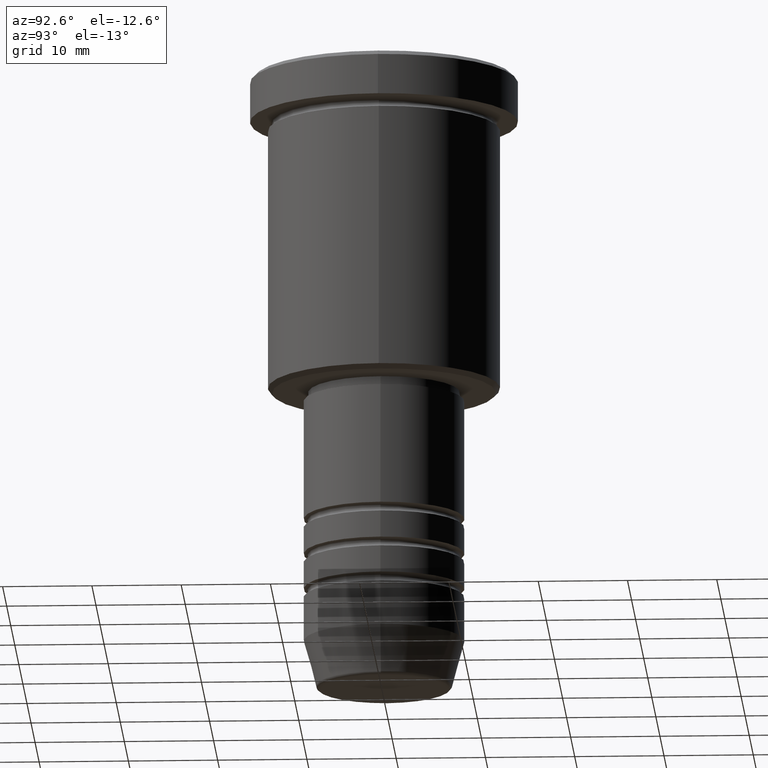
[diagram: clean part render]
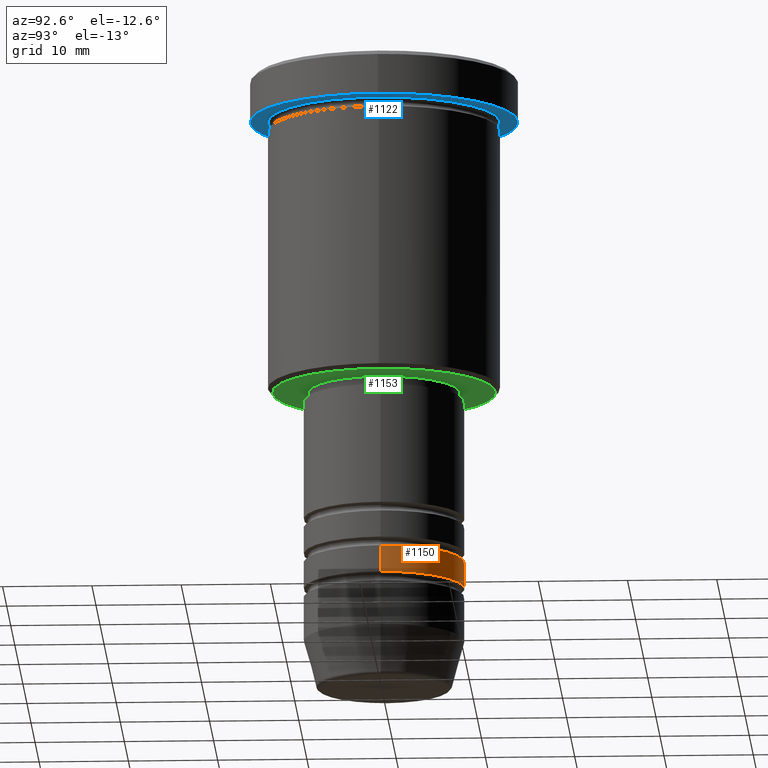
[diagram: same view with three faces highlighted in distinct colors, each labeled with its STEP entity id]
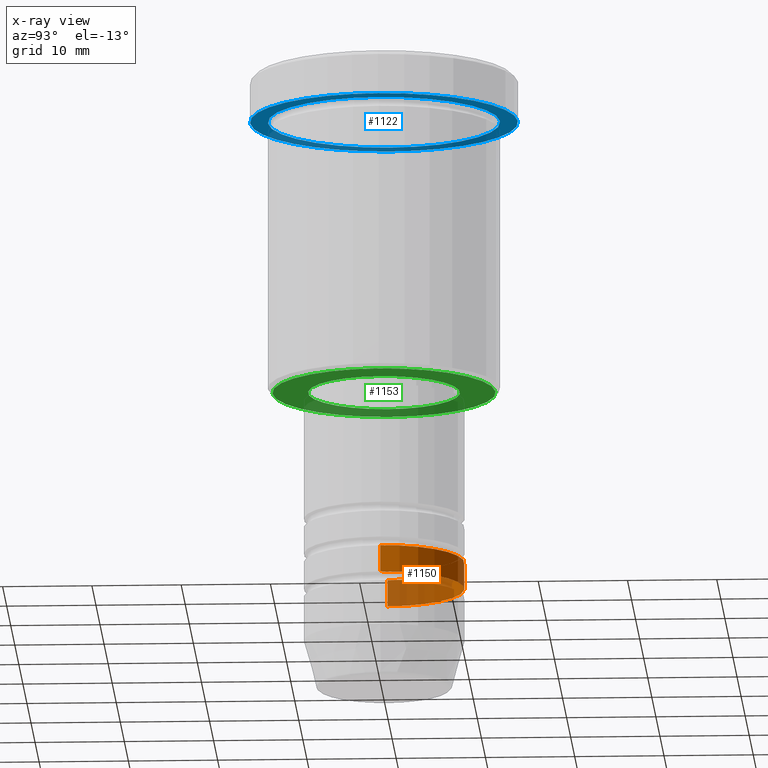
[diagram: x-ray of the same camera — body ghosted, the three highlighted faces saturated]
A machine part, auxiliary view with three faces highlighted in distinct colors.
The next image is the same camera in x-ray (body ghosted, the three faces saturated) — at least one of them is partly hidden behind the body in this view.
Their STEP definitions:

[orange] entity #1150 — the highlighted cylindrical surface (partial cylindrical patch) has radius 9 mm, axis along (-0, -0, 1).
#18 = AXIS2_PLACEMENT_3D ( 'NONE', #612, #74, #70 ) ;
#70 = DIRECTION ( 'NONE',  ( 1.000000000000000000, 0.000000000000000000, 0.000000000000000000 ) ) ;
#72 = VERTEX_POINT ( 'NONE', #1081 ) ;
#74 = DIRECTION ( 'NONE',  ( -0.000000000000000000, -0.000000000000000000, 1.000000000000000000 ) ) ;
#86 = CARTESIAN_POINT ( 'NONE',  ( 9.000000000000000000, 0.000000000000000000, -55.49999999999999289 ) ) ;
#96 = ORIENTED_EDGE ( 'NONE', *, *, #166, .F. ) ;
#134 = LINE ( 'NONE', #488, #179 ) ;
#166 = EDGE_CURVE ( 'NONE', #221, #946, #544, .T. ) ;
#179 = VECTOR ( 'NONE', #502, 1000.000000000000000 ) ;
#221 = VERTEX_POINT ( 'NONE', #86 ) ;
#227 = EDGE_LOOP ( 'NONE', ( #982, #447, #96, #778 ) ) ;
#255 = AXIS2_PLACEMENT_3D ( 'NONE', #835, #685, #315 ) ;
#259 = DIRECTION ( 'NONE',  ( -0.000000000000000000, -0.000000000000000000, 1.000000000000000000 ) ) ;
#262 = CYLINDRICAL_SURFACE ( 'NONE', #772, 9.000000000000001776 ) ;
#315 = DIRECTION ( 'NONE',  ( 1.000000000000000000, 0.000000000000000000, 0.000000000000000000 ) ) ;
#361 = DIRECTION ( 'NONE',  ( -0.000000000000000000, -0.000000000000000000, 1.000000000000000000 ) ) ;
#365 = CARTESIAN_POINT ( 'NONE',  ( 0.000000000000000000, 0.000000000000000000, 0.000000000000000000 ) ) ;
#447 = ORIENTED_EDGE ( 'NONE', *, *, #829, .T. ) ;
#462 = DIRECTION ( 'NONE',  ( 1.000000000000000000, 0.000000000000000000, 0.000000000000000000 ) ) ;
#488 = CARTESIAN_POINT ( 'NONE',  ( -9.000000000000001776, 1.102182119232617911E-15, 0.000000000000000000 ) ) ;
#502 = DIRECTION ( 'NONE',  ( -0.000000000000000000, -0.000000000000000000, 1.000000000000000000 ) ) ;
#544 = CIRCLE ( 'NONE', #18, 9.000000000000000000 ) ;
#568 = VERTEX_POINT ( 'NONE', #689 ) ;
#578 = EDGE_CURVE ( 'NONE', #568, #221, #1047, .T. ) ;
#612 = CARTESIAN_POINT ( 'NONE',  ( 0.000000000000000000, 0.000000000000000000, -55.49999999999999289 ) ) ;
#641 = FACE_OUTER_BOUND ( 'NONE', #227, .T. ) ;
#685 = DIRECTION ( 'NONE',  ( -0.000000000000000000, -0.000000000000000000, 1.000000000000000000 ) ) ;
#689 = CARTESIAN_POINT ( 'NONE',  ( 9.000000000000001776, 0.000000000000000000, -58.49999999999999289 ) ) ;
#772 = AXIS2_PLACEMENT_3D ( 'NONE', #365, #361, #462 ) ;
#778 = ORIENTED_EDGE ( 'NONE', *, *, #578, .F. ) ;
#795 = CARTESIAN_POINT ( 'NONE',  ( -9.000000000000000000, 1.102182119232617714E-15, -55.49999999999999289 ) ) ;
#829 = EDGE_CURVE ( 'NONE', #72, #946, #134, .T. ) ;
#835 = CARTESIAN_POINT ( 'NONE',  ( 0.000000000000000000, 0.000000000000000000, -58.49999999999999289 ) ) ;
#887 = EDGE_CURVE ( 'NONE', #568, #72, #1035, .T. ) ;
#946 = VERTEX_POINT ( 'NONE', #795 ) ;
#982 = ORIENTED_EDGE ( 'NONE', *, *, #887, .T. ) ;
#994 = VECTOR ( 'NONE', #259, 1000.000000000000000 ) ;
#1035 = CIRCLE ( 'NONE', #255, 9.000000000000001776 ) ;
#1047 = LINE ( 'NONE', #1078, #994 ) ;
#1078 = CARTESIAN_POINT ( 'NONE',  ( 9.000000000000001776, 0.000000000000000000, 0.000000000000000000 ) ) ;
#1081 = CARTESIAN_POINT ( 'NONE',  ( -9.000000000000001776, 1.102182119232617911E-15, -58.49999999999999289 ) ) ;
#1150 = ADVANCED_FACE ( 'NONE', ( #641 ), #262, .T. ) ;

[blue] entity #1122 — the highlighted planar face has unit normal (0, 0, -1).
#58 = CARTESIAN_POINT ( 'NONE',  ( -15.00000000000000000, 1.836970198721029589E-15, -4.999999999999999112 ) ) ;
#65 = CIRCLE ( 'NONE', #713, 15.00000000000000000 ) ;
#93 = DIRECTION ( 'NONE',  ( 0.000000000000000000, 0.000000000000000000, -1.000000000000000000 ) ) ;
#104 = EDGE_LOOP ( 'NONE', ( #867, #690 ) ) ;
#106 = VERTEX_POINT ( 'NONE', #58 ) ;
#187 = VERTEX_POINT ( 'NONE', #1178 ) ;
#210 = CARTESIAN_POINT ( 'NONE',  ( 13.00000000000000000, 1.592040838891559095E-15, -4.999999999999999112 ) ) ;
#245 = DIRECTION ( 'NONE',  ( -0.000000000000000000, -0.000000000000000000, 1.000000000000000000 ) ) ;
#257 = VERTEX_POINT ( 'NONE', #371 ) ;
#295 = CARTESIAN_POINT ( 'NONE',  ( 0.000000000000000000, 0.000000000000000000, -4.999999999999999112 ) ) ;
#302 = DIRECTION ( 'NONE',  ( -0.000000000000000000, -0.000000000000000000, 1.000000000000000000 ) ) ;
#371 = CARTESIAN_POINT ( 'NONE',  ( 15.00000000000000000, 0.000000000000000000, -4.999999999999999112 ) ) ;
#373 = ORIENTED_EDGE ( 'NONE', *, *, #1062, .T. ) ;
#377 = CIRCLE ( 'NONE', #998, 13.00000000000000000 ) ;
#434 = AXIS2_PLACEMENT_3D ( 'NONE', #626, #1149, #796 ) ;
#470 = AXIS2_PLACEMENT_3D ( 'NONE', #295, #302, #1129 ) ;
#489 = CIRCLE ( 'NONE', #470, 15.00000000000000000 ) ;
#552 = FACE_OUTER_BOUND ( 'NONE', #104, .T. ) ;
#596 = EDGE_CURVE ( 'NONE', #187, #931, #978, .T. ) ;
#626 = CARTESIAN_POINT ( 'NONE',  ( 0.000000000000000000, 0.000000000000000000, -4.999999999999999112 ) ) ;
#635 = AXIS2_PLACEMENT_3D ( 'NONE', #1172, #93, #904 ) ;
#642 = DIRECTION ( 'NONE',  ( 1.000000000000000000, 0.000000000000000000, 0.000000000000000000 ) ) ;
#690 = ORIENTED_EDGE ( 'NONE', *, *, #885, .F. ) ;
#713 = AXIS2_PLACEMENT_3D ( 'NONE', #820, #995, #642 ) ;
#741 = ORIENTED_EDGE ( 'NONE', *, *, #596, .T. ) ;
#787 = EDGE_CURVE ( 'NONE', #257, #106, #65, .T. ) ;
#796 = DIRECTION ( 'NONE',  ( -1.000000000000000000, 0.000000000000000000, 0.000000000000000000 ) ) ;
#820 = CARTESIAN_POINT ( 'NONE',  ( 0.000000000000000000, 0.000000000000000000, -4.999999999999999112 ) ) ;
#867 = ORIENTED_EDGE ( 'NONE', *, *, #787, .F. ) ;
#871 = EDGE_LOOP ( 'NONE', ( #741, #373 ) ) ;
#885 = EDGE_CURVE ( 'NONE', #106, #257, #489, .T. ) ;
#894 = FACE_BOUND ( 'NONE', #871, .T. ) ;
#904 = DIRECTION ( 'NONE',  ( -1.000000000000000000, 0.000000000000000000, -0.000000000000000000 ) ) ;
#909 = PLANE ( 'NONE',  #635 ) ;
#931 = VERTEX_POINT ( 'NONE', #210 ) ;
#965 = DIRECTION ( 'NONE',  ( -1.000000000000000000, 0.000000000000000000, 0.000000000000000000 ) ) ;
#978 = CIRCLE ( 'NONE', #434, 13.00000000000000000 ) ;
#995 = DIRECTION ( 'NONE',  ( -0.000000000000000000, -0.000000000000000000, 1.000000000000000000 ) ) ;
#998 = AXIS2_PLACEMENT_3D ( 'NONE', #1157, #245, #965 ) ;
#1062 = EDGE_CURVE ( 'NONE', #931, #187, #377, .T. ) ;
#1122 = ADVANCED_FACE ( 'NONE', ( #894, #552 ), #909, .T. ) ;
#1129 = DIRECTION ( 'NONE',  ( 1.000000000000000000, 0.000000000000000000, 0.000000000000000000 ) ) ;
#1149 = DIRECTION ( 'NONE',  ( -0.000000000000000000, -0.000000000000000000, 1.000000000000000000 ) ) ;
#1157 = CARTESIAN_POINT ( 'NONE',  ( 0.000000000000000000, 0.000000000000000000, -4.999999999999999112 ) ) ;
#1172 = CARTESIAN_POINT ( 'NONE',  ( 0.000000000000000000, 15.00000000000000000, -4.999999999999999112 ) ) ;
#1178 = CARTESIAN_POINT ( 'NONE',  ( -13.00000000000000000, 0.000000000000000000, -4.999999999999999112 ) ) ;

[green] entity #1153 — the highlighted planar face has unit normal (0, 0, -1).
#11 = EDGE_LOOP ( 'NONE', ( #659, #959 ) ) ;
#73 = DIRECTION ( 'NONE',  ( 1.000000000000000000, 0.000000000000000000, 0.000000000000000000 ) ) ;
#80 = AXIS2_PLACEMENT_3D ( 'NONE', #743, #1093, #95 ) ;
#85 = DIRECTION ( 'NONE',  ( 0.000000000000000000, 0.000000000000000000, -1.000000000000000000 ) ) ;
#87 = DIRECTION ( 'NONE',  ( -1.000000000000000000, 0.000000000000000000, -0.000000000000000000 ) ) ;
#95 = DIRECTION ( 'NONE',  ( 1.000000000000000000, 0.000000000000000000, 0.000000000000000000 ) ) ;
#115 = VERTEX_POINT ( 'NONE', #442 ) ;
#171 = CARTESIAN_POINT ( 'NONE',  ( 0.000000000000000000, 0.000000000000000000, -36.00000000000000000 ) ) ;
#342 = CARTESIAN_POINT ( 'NONE',  ( 8.500000000000000000, 0.000000000000000000, -36.00000000000000000 ) ) ;
#343 = DIRECTION ( 'NONE',  ( -0.000000000000000000, -0.000000000000000000, 1.000000000000000000 ) ) ;
#345 = EDGE_CURVE ( 'NONE', #115, #1024, #604, .T. ) ;
#346 = ORIENTED_EDGE ( 'NONE', *, *, #521, .T. ) ;
#354 = CARTESIAN_POINT ( 'NONE',  ( 0.000000000000000000, 0.000000000000000000, -36.00000000000000000 ) ) ;
#359 = AXIS2_PLACEMENT_3D ( 'NONE', #897, #369, #87 ) ;
#369 = DIRECTION ( 'NONE',  ( 0.000000000000000000, 0.000000000000000000, -1.000000000000000000 ) ) ;
#374 = AXIS2_PLACEMENT_3D ( 'NONE', #354, #343, #73 ) ;
#376 = DIRECTION ( 'NONE',  ( 0.000000000000000000, 0.000000000000000000, -1.000000000000000000 ) ) ;
#442 = CARTESIAN_POINT ( 'NONE',  ( -8.500000000000000000, 1.040949779275250140E-15, -36.00000000000000000 ) ) ;
#471 = DIRECTION ( 'NONE',  ( -1.000000000000000000, 0.000000000000000000, 0.000000000000000000 ) ) ;
#484 = CIRCLE ( 'NONE', #374, 8.500000000000000000 ) ;
#521 = EDGE_CURVE ( 'NONE', #1024, #115, #484, .T. ) ;
#535 = CARTESIAN_POINT ( 'NONE',  ( -12.50000000000000355, 1.561424668912875703E-15, -36.00000000000000000 ) ) ;
#559 = FACE_OUTER_BOUND ( 'NONE', #11, .T. ) ;
#585 = CIRCLE ( 'NONE', #1174, 12.50000000000000355 ) ;
#589 = ORIENTED_EDGE ( 'NONE', *, *, #345, .T. ) ;
#604 = CIRCLE ( 'NONE', #80, 8.500000000000000000 ) ;
#650 = VERTEX_POINT ( 'NONE', #535 ) ;
#659 = ORIENTED_EDGE ( 'NONE', *, *, #763, .T. ) ;
#696 = CIRCLE ( 'NONE', #790, 12.50000000000000355 ) ;
#743 = CARTESIAN_POINT ( 'NONE',  ( 0.000000000000000000, 0.000000000000000000, -36.00000000000000000 ) ) ;
#763 = EDGE_CURVE ( 'NONE', #777, #650, #696, .T. ) ;
#777 = VERTEX_POINT ( 'NONE', #1000 ) ;
#790 = AXIS2_PLACEMENT_3D ( 'NONE', #815, #85, #471 ) ;
#815 = CARTESIAN_POINT ( 'NONE',  ( 0.000000000000000000, 0.000000000000000000, -36.00000000000000000 ) ) ;
#819 = DIRECTION ( 'NONE',  ( -1.000000000000000000, 0.000000000000000000, 0.000000000000000000 ) ) ;
#897 = CARTESIAN_POINT ( 'NONE',  ( 0.000000000000000000, 13.00000000000000000, -36.00000000000000000 ) ) ;
#912 = EDGE_LOOP ( 'NONE', ( #346, #589 ) ) ;
#913 = FACE_BOUND ( 'NONE', #912, .T. ) ;
#959 = ORIENTED_EDGE ( 'NONE', *, *, #1096, .T. ) ;
#1000 = CARTESIAN_POINT ( 'NONE',  ( 12.50000000000000355, 0.000000000000000000, -36.00000000000000000 ) ) ;
#1024 = VERTEX_POINT ( 'NONE', #342 ) ;
#1083 = PLANE ( 'NONE',  #359 ) ;
#1093 = DIRECTION ( 'NONE',  ( -0.000000000000000000, -0.000000000000000000, 1.000000000000000000 ) ) ;
#1096 = EDGE_CURVE ( 'NONE', #650, #777, #585, .T. ) ;
#1153 = ADVANCED_FACE ( 'NONE', ( #559, #913 ), #1083, .T. ) ;
#1174 = AXIS2_PLACEMENT_3D ( 'NONE', #171, #376, #819 ) ;